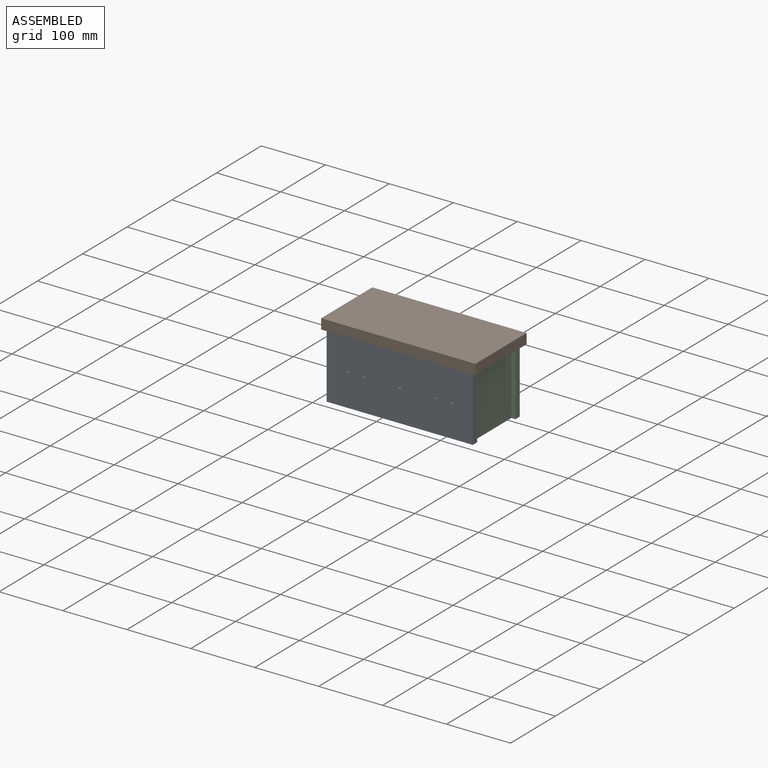
[diagram: assembled view]
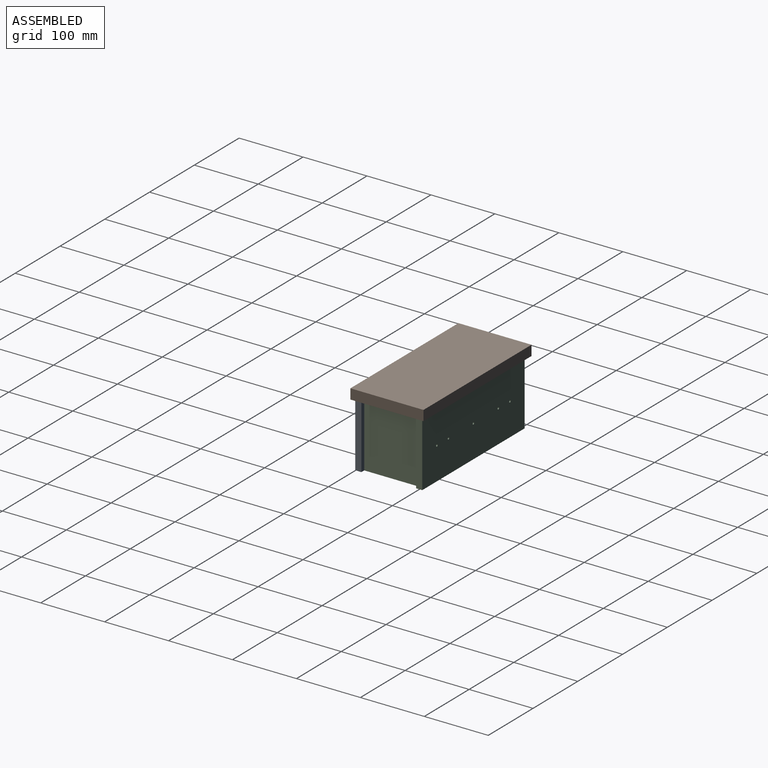
[diagram: assembled view, second angle]
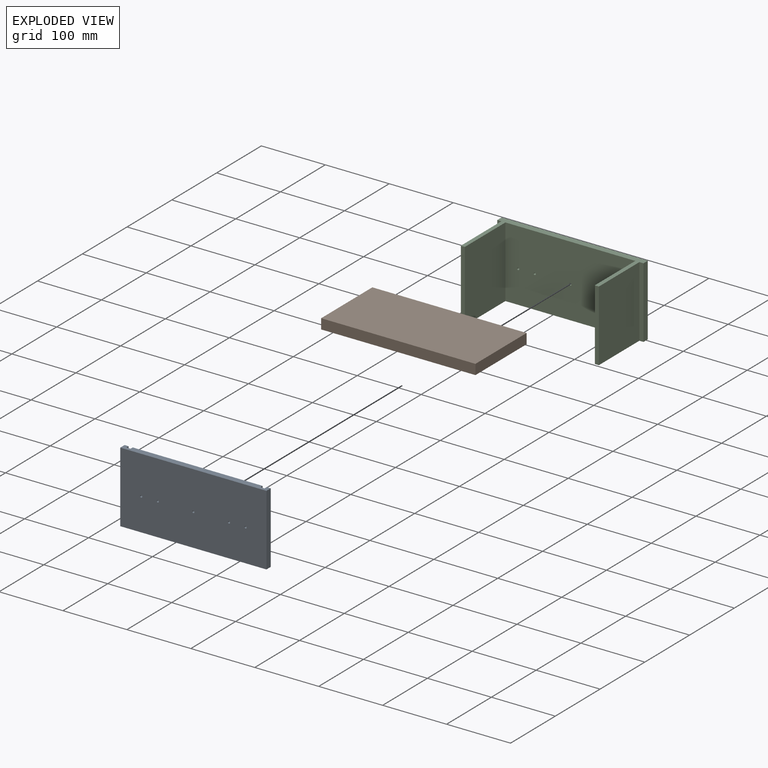
[diagram: exploded view]
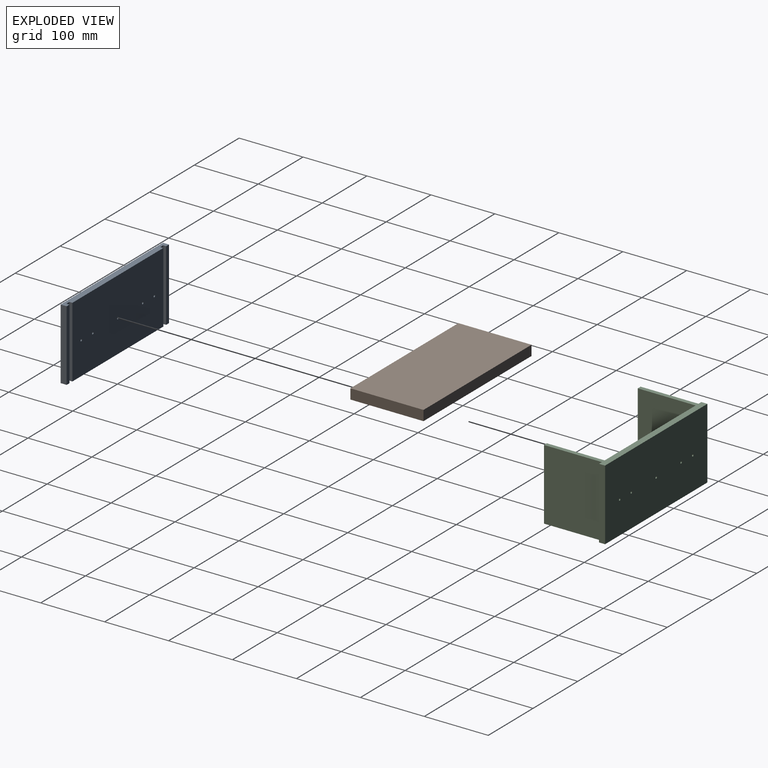
[diagram: exploded view, second angle]
ASSEMBLY  parts=3 mates=2
PART A: 19 faces, bbox 228.6x9.5x111.1 mm
  f0: plane 228.6x9.53mm, normal (0,0,1), area 2116.9mm2, adj f1,f8,f9,f10,f11,f12,f13,f14
  f1: plane 111.13x4.76mm, normal (-1,0,0), area 529.3mm2, adj f0,f2,f9,f15
  f2: plane 228.6x9.53mm, normal (0,0,-1), area 2116.9mm2, adj f1,f8,f9,f10,f11,f12,f13,f14
  f3: cylinder r=1.65mm len=9.53mm, axis (0,1,0), area 98.8mm2, adj f9,f10
  f4: cylinder r=1.59mm len=9.53mm, axis (0,1,0), area 95mm2, adj f9,f10
  f5: cylinder r=1.65mm len=9.53mm, axis (0,1,0), area 98.8mm2, adj f9,f10
  f6: cylinder r=1.65mm len=9.53mm, axis (0,1,0), area 98.8mm2, adj f9,f10
  f7: cylinder r=1.65mm len=9.53mm, axis (0,1,0), area 98.8mm2, adj f9,f10
  f8: plane 111.13x4.76mm, normal (1,0,0), area 529.3mm2, adj f0,f2,f9,f11
  f9: plane 203.2x111.13mm, normal (0,-1,0), area 22540mm2, adj f0,f1,f2,f3,f4,f5,f6,f7
  f10: plane 228.6x111.13mm, normal (0,1,0), area 25362.7mm2, adj f0,f2,f3,f4,f5,f6,f7,f13
  f11: plane 111.13x6.35mm, normal (0,-1,0), area 705.7mm2, adj f0,f2,f8,f12
  f12: plane 111.13x4.76mm, normal (-1,0,0), area 529.3mm2, adj f0,f2,f11,f14
  f13: plane 111.13x9.53mm, normal (1,0,0), area 1058.5mm2, adj f0,f2,f10,f14
  f14: plane 111.13x6.35mm, normal (0,-1,0), area 705.7mm2, adj f0,f2,f12,f13
  f15: plane 111.13x6.35mm, normal (0,-1,0), area 705.7mm2, adj f0,f1,f2,f16
  f16: plane 111.13x4.76mm, normal (1,0,0), area 529.3mm2, adj f0,f2,f15,f18
  f17: plane 111.13x9.53mm, normal (-1,0,0), area 1058.5mm2, adj f0,f2,f10,f18
  f18: plane 111.13x6.35mm, normal (0,-1,0), area 705.7mm2, adj f0,f2,f16,f17
PART B: 24 faces, bbox 241.3x114.3x15.9 mm
  f0: plane 241.3x15.88mm, normal (0,-1,0), area 3830.6mm2, adj f1,f15,f16,f17
  f1: plane 114.3x15.88mm, normal (1,0,0), area 1814.5mm2, adj f0,f2,f16,f17
  f2: plane 241.3x15.88mm, normal (0,1,0), area 3830.6mm2, adj f1,f15,f16,f17
  f3: plane 9.53x6.34mm, normal (1,0,0), area 60.4mm2, adj f4,f14,f16,f18
  f4: plane 228.6x9.53mm, normal (0,-1,0), area 2177.4mm2, adj f3,f5,f16,f18
  f5: plane 9.53x6.34mm, normal (-1,0,0), area 60.4mm2, adj f4,f6,f16,f18
  f6: plane 9.53x6.35mm, normal (0,1,0), area 60.5mm2, adj f5,f7,f16,f18
  f7: plane 85.74x9.53mm, normal (-1,0,0), area 816.7mm2, adj f6,f8,f16,f18
  f8: plane 9.53x6.35mm, normal (0,-1,0), area 60.5mm2, adj f7,f9,f16,f18
  f9: plane 9.53x9.53mm, normal (-1,0,0), area 90.7mm2, adj f8,f10,f16,f18
  f10: plane 228.6x9.53mm, normal (0,1,0), area 2177.4mm2, adj f9,f11,f16,f18
  f11: plane 9.53x9.53mm, normal (1,0,0), area 90.7mm2, adj f10,f12,f16,f18
  f12: plane 9.53x5.49mm, normal (0,-1,0), area 52.3mm2, adj f11,f13,f16,f18
  f13: plane 85.74x9.53mm, normal (1,0,0), area 816.7mm2, adj f12,f14,f16,f18
  f14: plane 9.53x5.49mm, normal (0,1,0), area 52.3mm2, adj f3,f13,f16,f18
  f15: plane 114.3x15.88mm, normal (-1,0,0), area 1814.5mm2, adj f0,f2,f16,f17
  f16: plane 241.3x114.3mm, normal (0,0,1), area 5370.1mm2, adj f0,f1,f2,f3,f4,f5,f6,f7
  f17: plane 241.3x114.3mm, normal (0,0,-1), area 27580.6mm2, adj f0,f1,f2,f15
  f18: plane 228.6x101.6mm, normal (0,0,1), area 5259.4mm2, adj f3,f4,f5,f6,f7,f8,f9,f10
  f19: plane 197.71x85.74mm, normal (0,0,1), area 16951mm2, adj f20,f21,f22,f23
  f20: plane 85.74x9.53mm, normal (1,0,0), area 816.7mm2, adj f18,f19,f21,f23
  f21: plane 197.71x9.53mm, normal (0,-1,0), area 1883.2mm2, adj f18,f19,f20,f22
  f22: plane 85.74x9.53mm, normal (-1,0,0), area 816.7mm2, adj f18,f19,f21,f23
  f23: plane 197.71x9.53mm, normal (0,1,0), area 1883.2mm2, adj f18,f19,f20,f22
PART C: 19 faces, bbox 228.6x100x111.1 mm
  f0: plane 203.2x111.13mm, normal (0,-1,0), area 22540mm2, adj f1,f3,f4,f5,f6,f7,f8,f11
  f1: plane 228.6x100.01mm, normal (0,0,1), area 3326.6mm2, adj f0,f2,f9,f10,f11,f12,f13,f14
  f2: plane 111.13x90.49mm, normal (-1,0,0), area 10056.1mm2, adj f1,f3,f12,f16
  f3: plane 228.6x100.01mm, normal (0,0,-1), area 3326.6mm2, adj f0,f2,f9,f10,f11,f12,f13,f14
  f4: cylinder r=1.65mm len=9.53mm, axis (0,1,0), area 98.8mm2, adj f0,f10
  f5: cylinder r=1.59mm len=9.53mm, axis (0,1,0), area 95mm2, adj f0,f10
  f6: cylinder r=1.65mm len=9.53mm, axis (0,1,0), area 98.8mm2, adj f0,f10
  f7: cylinder r=1.65mm len=9.53mm, axis (0,1,0), area 98.8mm2, adj f0,f10
  f8: cylinder r=1.65mm len=9.53mm, axis (0,1,0), area 98.8mm2, adj f0,f10
  f9: plane 111.13x90.49mm, normal (1,0,0), area 10056.1mm2, adj f1,f3,f14,f18
  f10: plane 228.6x111.13mm, normal (0,1,0), area 25362.7mm2, adj f1,f3,f4,f5,f6,f7,f8,f15
  f11: plane 111.13x90.49mm, normal (1,0,0), area 10056.1mm2, adj f0,f1,f3,f12
  f12: plane 111.13x6.35mm, normal (0,-1,0), area 705.7mm2, adj f1,f2,f3,f11
  f13: plane 111.13x90.49mm, normal (-1,0,0), area 10056.1mm2, adj f0,f1,f3,f14
  f14: plane 111.13x6.35mm, normal (0,-1,0), area 705.7mm2, adj f1,f3,f9,f13
  f15: plane 111.13x9.53mm, normal (-1,0,0), area 1058.5mm2, adj f1,f3,f10,f16
  f16: plane 111.13x6.35mm, normal (0,-1,0), area 705.7mm2, adj f1,f2,f3,f15
  f17: plane 111.13x9.53mm, normal (1,0,0), area 1058.5mm2, adj f1,f3,f10,f18
  f18: plane 111.13x6.35mm, normal (0,-1,0), area 705.7mm2, adj f1,f3,f9,f17
PLACE A rot(axis=(1,0,0),180deg) t=(-166.97,-294.92,-120.21)mm
PLACE B rot(axis=(1,0,0),180deg) t=(-166.97,-245.71,-53.53)mm
PLACE C rot(axis=(0,1,0),180deg) t=(-166.97,-190.15,-120.21)mm fixed
MATE parallel A.f11 <-> C.f12  axis (0,1,0) through (-62.19,-290.16,-59.88)mm
MATE fastened B.f18 <-> C.f3  axis (0,0,-1) through (-52.67,-194.91,-59.88)mm
